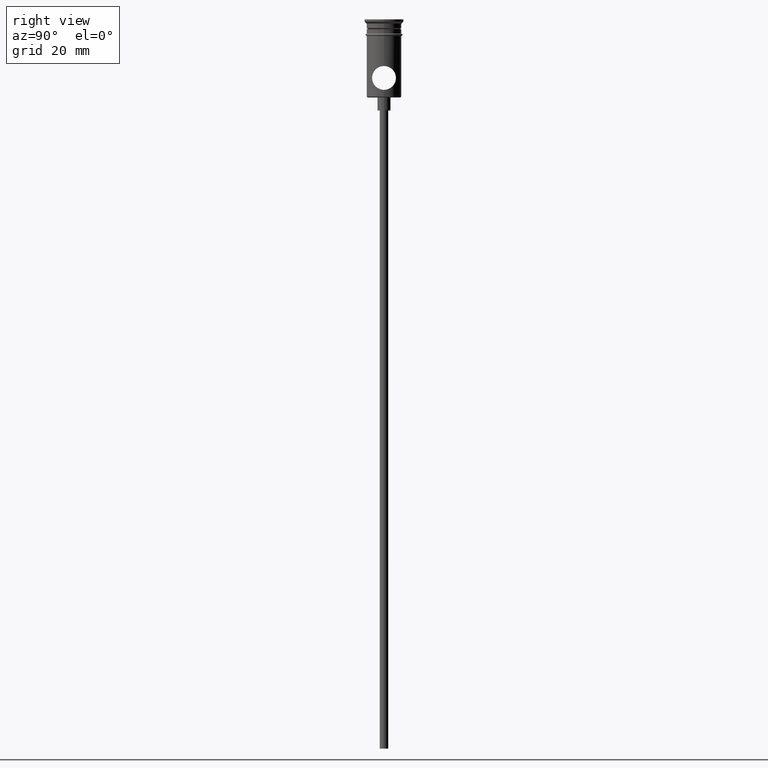
[diagram: clean part render]
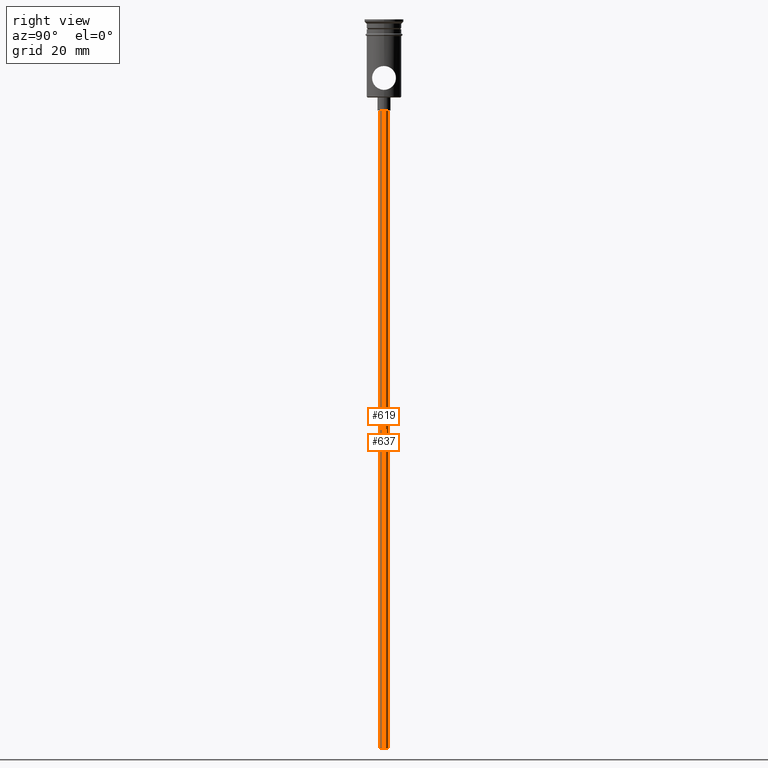
[diagram: same view with one multi-face feature highlighted, each face labeled with its STEP entity id]
A machine part, right view. The highlighted faces form ONE feature: a constant-radius fillet chain: 2 tangent blend faces with common blend radius 1 mm. The faces share edges in the B-rep.
Their STEP definitions:
[1] entity #619 (Cylinder):
#7 = EDGE_CURVE ( 'NONE', #1128, #1034, #274, .T. ) ;
#22 = CARTESIAN_POINT ( 'NONE',  ( -0.9999999999999997780, 1.224646799147352961E-16, -20.99999999999999645 ) ) ;
#91 = CARTESIAN_POINT ( 'NONE',  ( 0.000000000000000000, 0.000000000000000000, -167.9999999999999716 ) ) ;
#116 = DIRECTION ( 'NONE',  ( -1.000000000000000000, 0.000000000000000000, 0.000000000000000000 ) ) ;
#121 = VERTEX_POINT ( 'NONE', #740 ) ;
#158 = CARTESIAN_POINT ( 'NONE',  ( 0.9999999999999997780, 0.000000000000000000, -167.9999999999999716 ) ) ;
#196 = EDGE_CURVE ( 'NONE', #1034, #1396, #1071, .T. ) ;
#209 = AXIS2_PLACEMENT_3D ( 'NONE', #91, #1063, #516 ) ;
#265 = VECTOR ( 'NONE', #364, 1000.000000000000000 ) ;
#268 = CIRCLE ( 'NONE', #1395, 0.9999999999999997780 ) ;
#274 = LINE ( 'NONE', #917, #265 ) ;
#301 = CYLINDRICAL_SURFACE ( 'NONE', #209, 0.9999999999999997780 ) ;
#364 = DIRECTION ( 'NONE',  ( -0.000000000000000000, -0.000000000000000000, 1.000000000000000000 ) ) ;
#444 = CARTESIAN_POINT ( 'NONE',  ( 0.9999999999999997780, 0.000000000000000000, -20.99999999999999645 ) ) ;
#463 = CARTESIAN_POINT ( 'NONE',  ( -0.9999999999999997780, 1.224646799147352961E-16, -167.9999999999999716 ) ) ;
#516 = DIRECTION ( 'NONE',  ( 1.000000000000000000, 0.000000000000000000, 0.000000000000000000 ) ) ;
#523 = DIRECTION ( 'NONE',  ( -1.000000000000000000, 0.000000000000000000, 0.000000000000000000 ) ) ;
#583 = ORIENTED_EDGE ( 'NONE', *, *, #1096, .F. ) ;
#613 = FACE_OUTER_BOUND ( 'NONE', #946, .T. ) ;
#619 = ADVANCED_FACE ( 'NONE', ( #613 ), #301, .T. ) ;
#674 = ORIENTED_EDGE ( 'NONE', *, *, #196, .T. ) ;
#678 = LINE ( 'NONE', #463, #1189 ) ;
#681 = EDGE_CURVE ( 'NONE', #1128, #121, #268, .T. ) ;
#740 = CARTESIAN_POINT ( 'NONE',  ( -0.9999999999999997780, 1.224646799147352961E-16, -167.9999999999999716 ) ) ;
#817 = DIRECTION ( 'NONE',  ( -0.000000000000000000, -0.000000000000000000, 1.000000000000000000 ) ) ;
#878 = CARTESIAN_POINT ( 'NONE',  ( 0.000000000000000000, 0.000000000000000000, -167.9999999999999716 ) ) ;
#911 = ORIENTED_EDGE ( 'NONE', *, *, #7, .T. ) ;
#917 = CARTESIAN_POINT ( 'NONE',  ( 0.9999999999999997780, 0.000000000000000000, -167.9999999999999716 ) ) ;
#946 = EDGE_LOOP ( 'NONE', ( #583, #1065, #911, #674 ) ) ;
#1011 = DIRECTION ( 'NONE',  ( 0.000000000000000000, 0.000000000000000000, -1.000000000000000000 ) ) ;
#1034 = VERTEX_POINT ( 'NONE', #444 ) ;
#1063 = DIRECTION ( 'NONE',  ( -0.000000000000000000, -0.000000000000000000, 1.000000000000000000 ) ) ;
#1065 = ORIENTED_EDGE ( 'NONE', *, *, #681, .F. ) ;
#1071 = CIRCLE ( 'NONE', #1344, 0.9999999999999997780 ) ;
#1096 = EDGE_CURVE ( 'NONE', #121, #1396, #678, .T. ) ;
#1128 = VERTEX_POINT ( 'NONE', #158 ) ;
#1189 = VECTOR ( 'NONE', #817, 1000.000000000000000 ) ;
#1195 = CARTESIAN_POINT ( 'NONE',  ( 0.000000000000000000, 0.000000000000000000, -20.99999999999999645 ) ) ;
#1344 = AXIS2_PLACEMENT_3D ( 'NONE', #1195, #1413, #523 ) ;
#1395 = AXIS2_PLACEMENT_3D ( 'NONE', #878, #1011, #116 ) ;
#1396 = VERTEX_POINT ( 'NONE', #22 ) ;
#1413 = DIRECTION ( 'NONE',  ( 0.000000000000000000, 0.000000000000000000, -1.000000000000000000 ) ) ;
[2] entity #637 (Cylinder):
#7 = EDGE_CURVE ( 'NONE', #1128, #1034, #274, .T. ) ;
#20 = CIRCLE ( 'NONE', #105, 0.9999999999999997780 ) ;
#22 = CARTESIAN_POINT ( 'NONE',  ( -0.9999999999999997780, 1.224646799147352961E-16, -20.99999999999999645 ) ) ;
#105 = AXIS2_PLACEMENT_3D ( 'NONE', #1217, #1113, #893 ) ;
#121 = VERTEX_POINT ( 'NONE', #740 ) ;
#158 = CARTESIAN_POINT ( 'NONE',  ( 0.9999999999999997780, 0.000000000000000000, -167.9999999999999716 ) ) ;
#265 = VECTOR ( 'NONE', #364, 1000.000000000000000 ) ;
#274 = LINE ( 'NONE', #917, #265 ) ;
#288 = DIRECTION ( 'NONE',  ( -1.000000000000000000, 0.000000000000000000, 0.000000000000000000 ) ) ;
#292 = CIRCLE ( 'NONE', #1186, 0.9999999999999997780 ) ;
#337 = EDGE_CURVE ( 'NONE', #1396, #1034, #292, .T. ) ;
#364 = DIRECTION ( 'NONE',  ( -0.000000000000000000, -0.000000000000000000, 1.000000000000000000 ) ) ;
#444 = CARTESIAN_POINT ( 'NONE',  ( 0.9999999999999997780, 0.000000000000000000, -20.99999999999999645 ) ) ;
#455 = EDGE_LOOP ( 'NONE', ( #953, #537, #1116, #1342 ) ) ;
#463 = CARTESIAN_POINT ( 'NONE',  ( -0.9999999999999997780, 1.224646799147352961E-16, -167.9999999999999716 ) ) ;
#537 = ORIENTED_EDGE ( 'NONE', *, *, #1096, .T. ) ;
#604 = DIRECTION ( 'NONE',  ( -0.000000000000000000, -0.000000000000000000, 1.000000000000000000 ) ) ;
#637 = ADVANCED_FACE ( 'NONE', ( #1175 ), #975, .T. ) ;
#639 = DIRECTION ( 'NONE',  ( 1.000000000000000000, 0.000000000000000000, 0.000000000000000000 ) ) ;
#665 = EDGE_CURVE ( 'NONE', #121, #1128, #20, .T. ) ;
#678 = LINE ( 'NONE', #463, #1189 ) ;
#740 = CARTESIAN_POINT ( 'NONE',  ( -0.9999999999999997780, 1.224646799147352961E-16, -167.9999999999999716 ) ) ;
#817 = DIRECTION ( 'NONE',  ( -0.000000000000000000, -0.000000000000000000, 1.000000000000000000 ) ) ;
#893 = DIRECTION ( 'NONE',  ( -1.000000000000000000, 0.000000000000000000, 0.000000000000000000 ) ) ;
#917 = CARTESIAN_POINT ( 'NONE',  ( 0.9999999999999997780, 0.000000000000000000, -167.9999999999999716 ) ) ;
#935 = CARTESIAN_POINT ( 'NONE',  ( 0.000000000000000000, 0.000000000000000000, -20.99999999999999645 ) ) ;
#953 = ORIENTED_EDGE ( 'NONE', *, *, #665, .F. ) ;
#975 = CYLINDRICAL_SURFACE ( 'NONE', #1346, 0.9999999999999997780 ) ;
#1034 = VERTEX_POINT ( 'NONE', #444 ) ;
#1096 = EDGE_CURVE ( 'NONE', #121, #1396, #678, .T. ) ;
#1113 = DIRECTION ( 'NONE',  ( 0.000000000000000000, 0.000000000000000000, -1.000000000000000000 ) ) ;
#1116 = ORIENTED_EDGE ( 'NONE', *, *, #337, .T. ) ;
#1128 = VERTEX_POINT ( 'NONE', #158 ) ;
#1175 = FACE_OUTER_BOUND ( 'NONE', #455, .T. ) ;
#1186 = AXIS2_PLACEMENT_3D ( 'NONE', #935, #1264, #288 ) ;
#1189 = VECTOR ( 'NONE', #817, 1000.000000000000000 ) ;
#1194 = CARTESIAN_POINT ( 'NONE',  ( 0.000000000000000000, 0.000000000000000000, -167.9999999999999716 ) ) ;
#1217 = CARTESIAN_POINT ( 'NONE',  ( 0.000000000000000000, 0.000000000000000000, -167.9999999999999716 ) ) ;
#1264 = DIRECTION ( 'NONE',  ( 0.000000000000000000, 0.000000000000000000, -1.000000000000000000 ) ) ;
#1342 = ORIENTED_EDGE ( 'NONE', *, *, #7, .F. ) ;
#1346 = AXIS2_PLACEMENT_3D ( 'NONE', #1194, #604, #639 ) ;
#1396 = VERTEX_POINT ( 'NONE', #22 ) ;